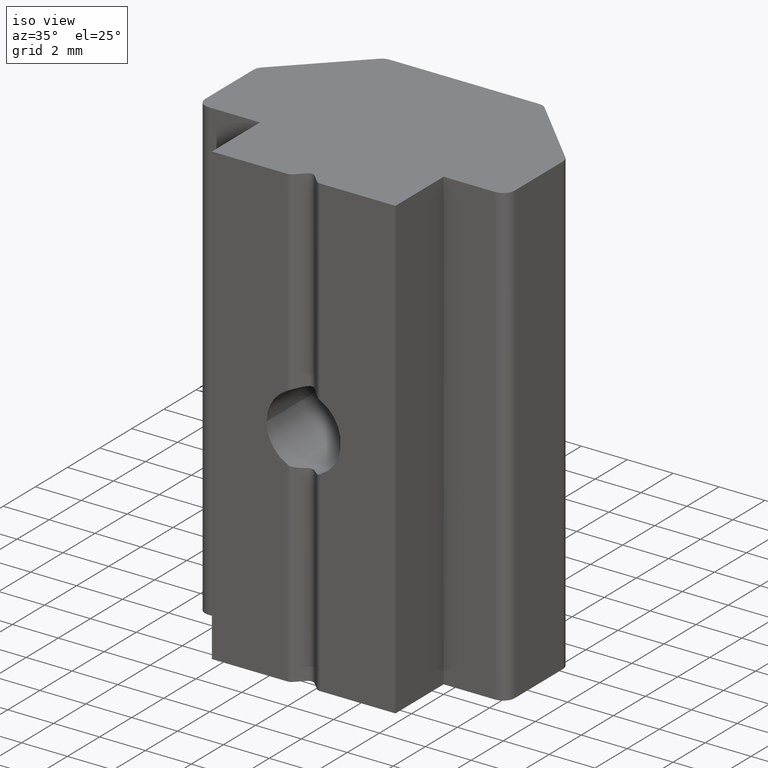
[diagram: clean part render]
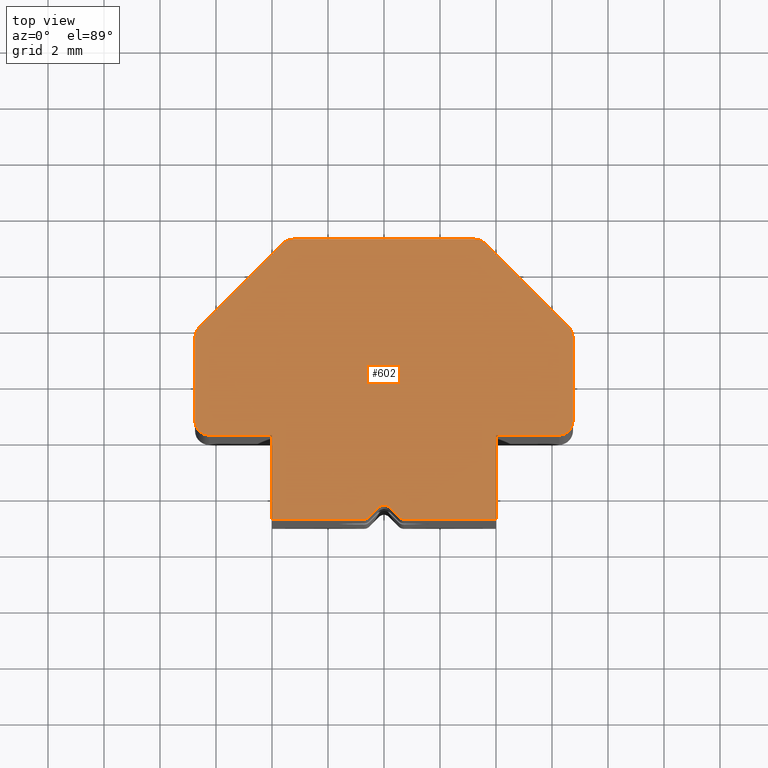
[diagram: tour spotlight — one face highlighted and labeled with its STEP entity id]
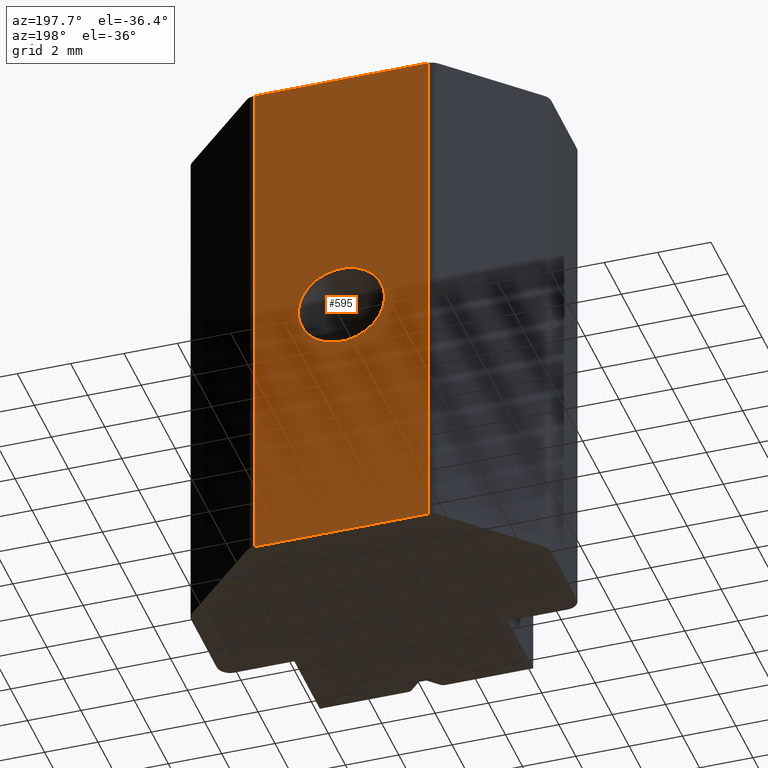
[diagram: tour spotlight — one face highlighted and labeled with its STEP entity id]
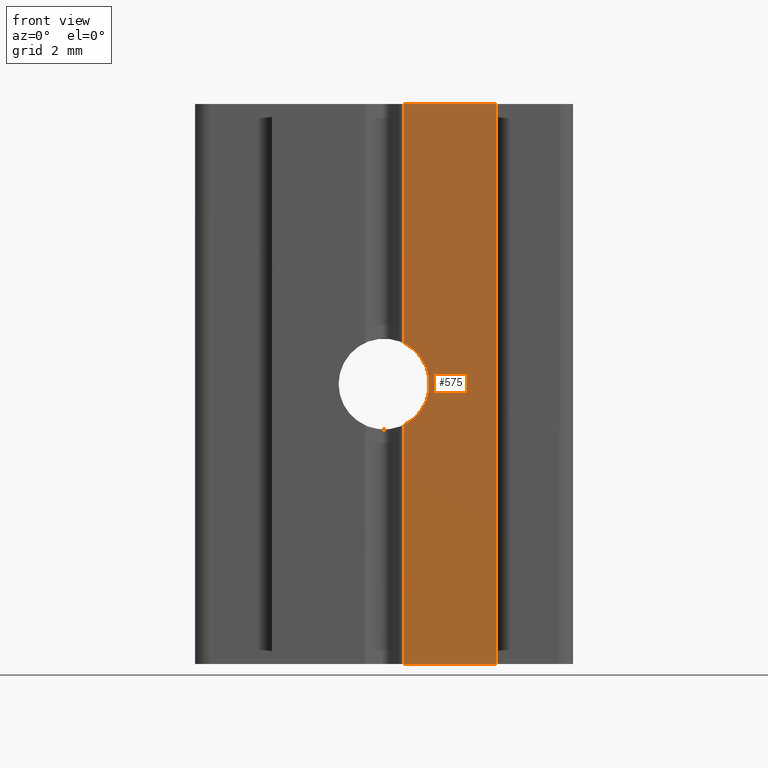
[diagram: tour spotlight — one face highlighted and labeled with its STEP entity id]
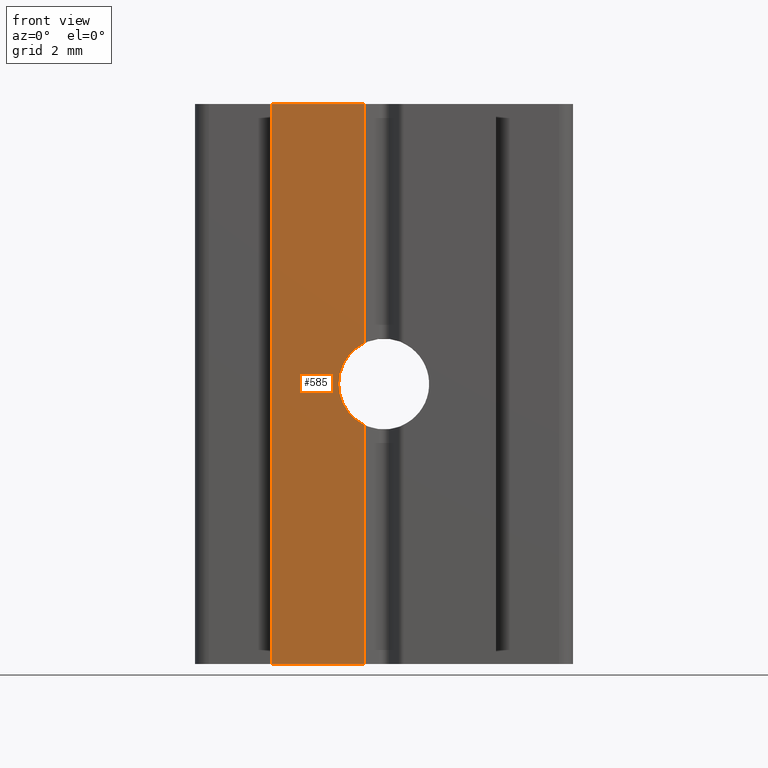
[diagram: tour spotlight — one face highlighted and labeled with its STEP entity id]
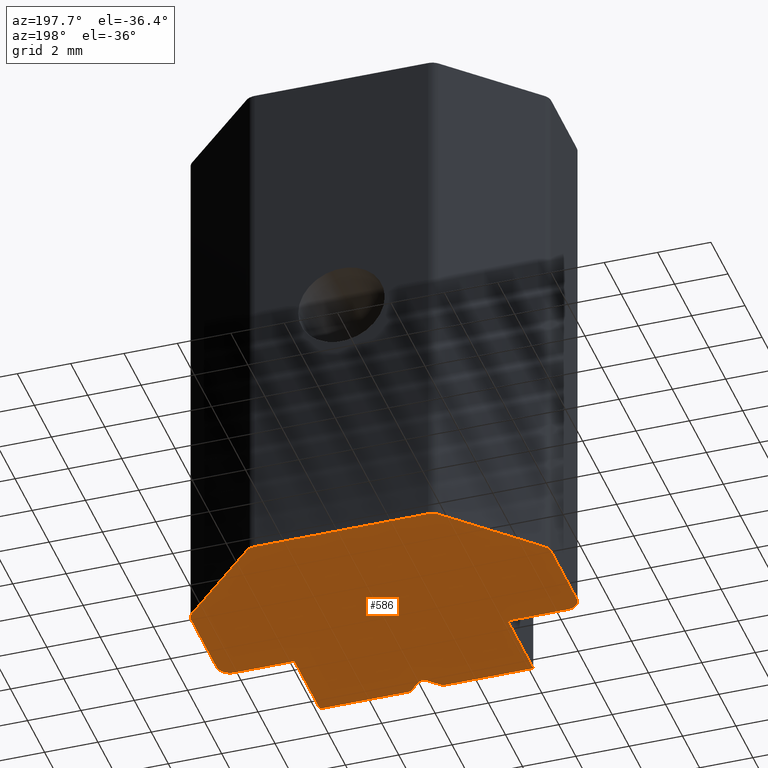
[diagram: tour spotlight — one face highlighted and labeled with its STEP entity id]
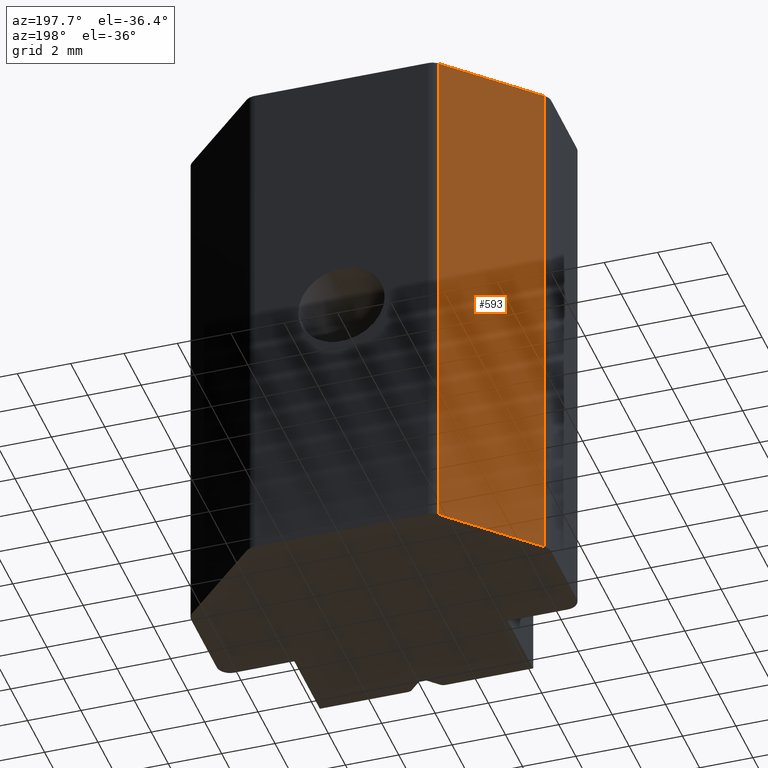
[diagram: tour spotlight — one face highlighted and labeled with its STEP entity id]
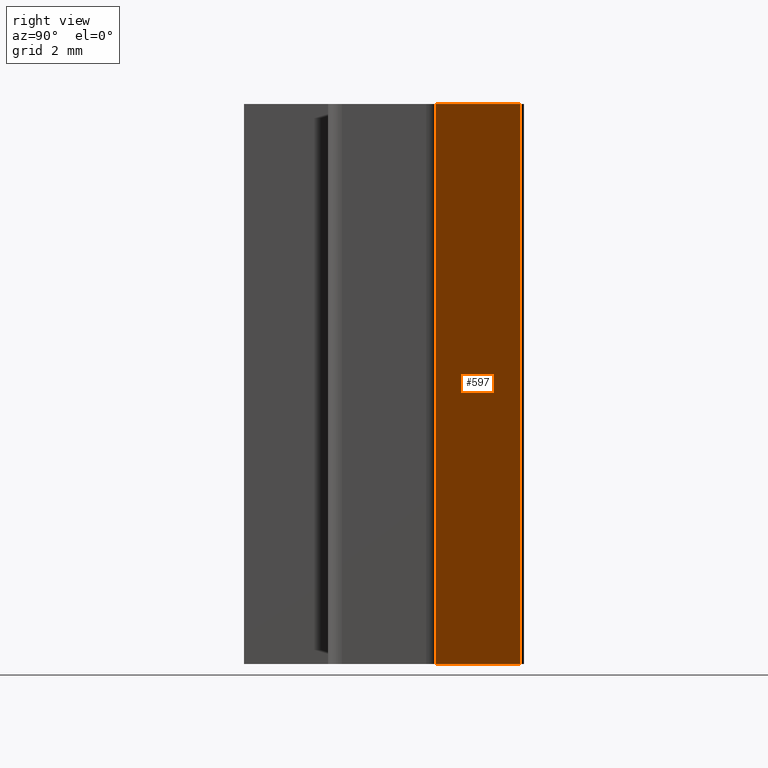
[diagram: tour spotlight — one face highlighted and labeled with its STEP entity id]
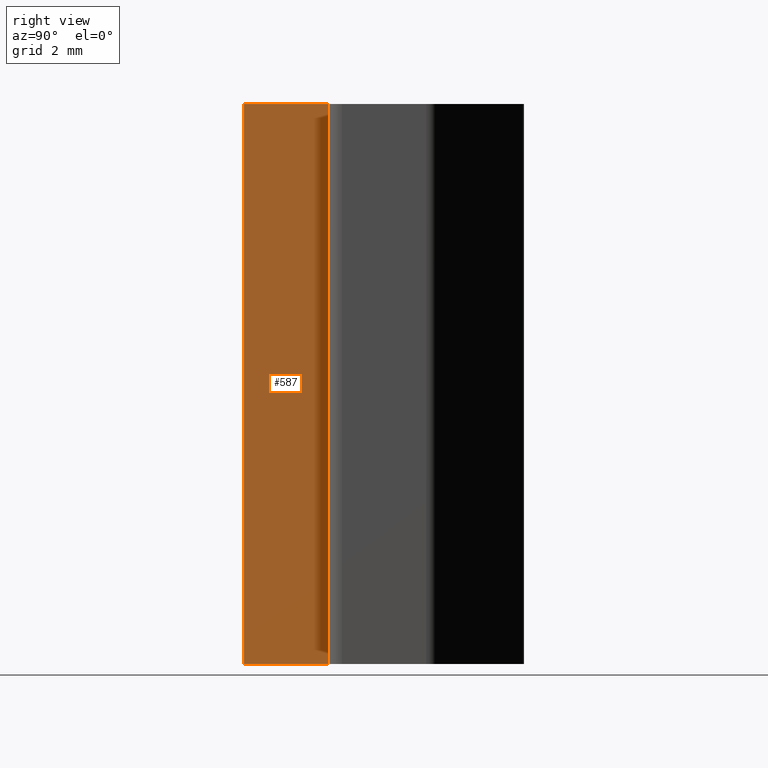
[diagram: tour spotlight — one face highlighted and labeled with its STEP entity id]
A machine part: a face-by-face anatomy tour. The part has 30 B-rep faces; the first image is the clean iso view, then the 8 largest visible faces are spotlighted one at a time (largest first), each with its STEP entity span.

Face 1 — top view, entity #602. In plain terms, the highlighted planar face has unit normal (0, 0, 1).
Definition (entity closure, byte-faithful):
#32=PLANE('',#679);
#62=FACE_OUTER_BOUND('',#93,.T.);
#93=EDGE_LOOP('',(#538,#539,#540,#541,#542,#543,#544,#545,#546,#547,#548,
#549,#550,#551,#552,#553,#554,#555,#556,#557,#558,#559));
#110=LINE('',#936,#165);
#120=LINE('',#963,#175);
#123=LINE('',#971,#178);
#124=LINE('',#974,#179);
#137=LINE('',#1011,#192);
#138=LINE('',#1014,#193);
#140=LINE('',#1018,#195);
#143=LINE('',#1026,#198);
#146=LINE('',#1034,#201);
#149=LINE('',#1042,#204);
#152=LINE('',#1050,#207);
#155=LINE('',#1058,#210);
#158=LINE('',#1065,#213);
#165=VECTOR('',#714,10.);
#175=VECTOR('',#746,10.);
#178=VECTOR('',#755,10.);
#179=VECTOR('',#758,10.);
#192=VECTOR('',#787,10.);
#193=VECTOR('',#790,10.);
#195=VECTOR('',#794,10.);
#198=VECTOR('',#803,10.);
#201=VECTOR('',#812,10.);
#204=VECTOR('',#821,10.);
#207=VECTOR('',#830,10.);
#210=VECTOR('',#839,10.);
#213=VECTOR('',#848,10.);
#221=CIRCLE('',#640,0.25);
#223=CIRCLE('',#644,0.249999999999999);
#224=CIRCLE('',#648,0.25);
#231=CIRCLE('',#662,0.499999999999999);
#232=CIRCLE('',#665,0.500000000000005);
#233=CIRCLE('',#668,0.499999999999994);
#234=CIRCLE('',#671,0.5);
#235=CIRCLE('',#674,0.500000000000001);
#236=CIRCLE('',#677,0.499999999999999);
#256=VERTEX_POINT('',#933);
#257=VERTEX_POINT('',#935);
#260=VERTEX_POINT('',#947);
#261=VERTEX_POINT('',#949);
#263=VERTEX_POINT('',#957);
#264=VERTEX_POINT('',#965);
#265=VERTEX_POINT('',#967);
#266=VERTEX_POINT('',#973);
#282=VERTEX_POINT('',#1009);
#283=VERTEX_POINT('',#1013);
#284=VERTEX_POINT('',#1017);
#285=VERTEX_POINT('',#1021);
#286=VERTEX_POINT('',#1025);
#287=VERTEX_POINT('',#1029);
#288=VERTEX_POINT('',#1033);
#289=VERTEX_POINT('',#1037);
#290=VERTEX_POINT('',#1041);
#291=VERTEX_POINT('',#1045);
#292=VERTEX_POINT('',#1049);
#293=VERTEX_POINT('',#1053);
#294=VERTEX_POINT('',#1057);
#295=VERTEX_POINT('',#1061);
#318=EDGE_CURVE('',#257,#256,#110,.T.);
#325=EDGE_CURVE('',#261,#260,#221,.T.);
#329=EDGE_CURVE('',#263,#257,#223,.T.);
#332=EDGE_CURVE('',#260,#263,#120,.T.);
#334=EDGE_CURVE('',#265,#264,#224,.T.);
#336=EDGE_CURVE('',#264,#261,#123,.T.);
#337=EDGE_CURVE('',#266,#265,#124,.T.);
#356=EDGE_CURVE('',#256,#282,#137,.T.);
#357=EDGE_CURVE('',#283,#266,#138,.T.);
#359=EDGE_CURVE('',#284,#283,#140,.T.);
#361=EDGE_CURVE('',#285,#284,#231,.T.);
#363=EDGE_CURVE('',#286,#285,#143,.T.);
#365=EDGE_CURVE('',#287,#286,#232,.T.);
#367=EDGE_CURVE('',#288,#287,#146,.T.);
#369=EDGE_CURVE('',#289,#288,#233,.T.);
#371=EDGE_CURVE('',#290,#289,#149,.T.);
#373=EDGE_CURVE('',#291,#290,#234,.T.);
#375=EDGE_CURVE('',#292,#291,#152,.T.);
#377=EDGE_CURVE('',#293,#292,#235,.T.);
#379=EDGE_CURVE('',#294,#293,#155,.T.);
#381=EDGE_CURVE('',#295,#294,#236,.T.);
#383=EDGE_CURVE('',#282,#295,#158,.T.);
#538=ORIENTED_EDGE('',*,*,#329,.T.);
#539=ORIENTED_EDGE('',*,*,#318,.T.);
#540=ORIENTED_EDGE('',*,*,#356,.T.);
#541=ORIENTED_EDGE('',*,*,#383,.T.);
#542=ORIENTED_EDGE('',*,*,#381,.T.);
#543=ORIENTED_EDGE('',*,*,#379,.T.);
#544=ORIENTED_EDGE('',*,*,#377,.T.);
#545=ORIENTED_EDGE('',*,*,#375,.T.);
#546=ORIENTED_EDGE('',*,*,#373,.T.);
#547=ORIENTED_EDGE('',*,*,#371,.T.);
#548=ORIENTED_EDGE('',*,*,#369,.T.);
#549=ORIENTED_EDGE('',*,*,#367,.T.);
#550=ORIENTED_EDGE('',*,*,#365,.T.);
#551=ORIENTED_EDGE('',*,*,#363,.T.);
#552=ORIENTED_EDGE('',*,*,#361,.T.);
#553=ORIENTED_EDGE('',*,*,#359,.T.);
#554=ORIENTED_EDGE('',*,*,#357,.T.);
#555=ORIENTED_EDGE('',*,*,#337,.T.);
#556=ORIENTED_EDGE('',*,*,#334,.T.);
#557=ORIENTED_EDGE('',*,*,#336,.T.);
#558=ORIENTED_EDGE('',*,*,#325,.T.);
#559=ORIENTED_EDGE('',*,*,#332,.T.);
#602=ADVANCED_FACE('',(#62),#32,.T.);
#640=AXIS2_PLACEMENT_3D('',#950,#728,#729);
#644=AXIS2_PLACEMENT_3D('',#958,#738,#739);
#648=AXIS2_PLACEMENT_3D('',#968,#750,#751);
#662=AXIS2_PLACEMENT_3D('',#1022,#798,#799);
#665=AXIS2_PLACEMENT_3D('',#1030,#807,#808);
#668=AXIS2_PLACEMENT_3D('',#1038,#816,#817);
#671=AXIS2_PLACEMENT_3D('',#1046,#825,#826);
#674=AXIS2_PLACEMENT_3D('',#1054,#834,#835);
#677=AXIS2_PLACEMENT_3D('',#1062,#843,#844);
#679=AXIS2_PLACEMENT_3D('',#1066,#849,#850);
#714=DIRECTION('',(1.,0.,0.));
#728=DIRECTION('center_axis',(0.,0.,-1.));
#729=DIRECTION('ref_axis',(0.707106781186547,0.707106781186548,0.));
#738=DIRECTION('center_axis',(0.,0.,1.));
#739=DIRECTION('ref_axis',(0.707106781186548,0.707106781186547,0.));
#746=DIRECTION('',(0.707106781186545,-0.707106781186549,0.));
#750=DIRECTION('center_axis',(0.,0.,1.));
#751=DIRECTION('ref_axis',(5.55111512312579E-16,1.,0.));
#755=DIRECTION('',(0.707106781186547,0.707106781186548,0.));
#758=DIRECTION('',(1.,0.,0.));
#787=DIRECTION('',(0.,1.,0.));
#790=DIRECTION('',(0.,-1.,0.));
#794=DIRECTION('',(1.,0.,0.));
#798=DIRECTION('center_axis',(0.,0.,1.));
#799=DIRECTION('ref_axis',(-1.,0.,0.));
#803=DIRECTION('',(0.,-1.,0.));
#807=DIRECTION('center_axis',(0.,0.,1.));
#808=DIRECTION('ref_axis',(-0.707106781186549,0.707106781186546,0.));
#812=DIRECTION('',(-0.707106781186547,-0.707106781186548,0.));
#816=DIRECTION('center_axis',(0.,0.,1.));
#817=DIRECTION('ref_axis',(0.,1.,0.));
#821=DIRECTION('',(-1.,0.,0.));
#825=DIRECTION('center_axis',(0.,0.,1.));
#826=DIRECTION('ref_axis',(0.707106781186548,0.707106781186547,0.));
#830=DIRECTION('',(-0.707106781186547,0.707106781186548,0.));
#834=DIRECTION('center_axis',(0.,0.,1.));
#835=DIRECTION('ref_axis',(1.,-1.11022302462516E-15,0.));
#839=DIRECTION('',(-3.70074341541719E-16,1.,0.));
#843=DIRECTION('center_axis',(0.,0.,1.));
#844=DIRECTION('ref_axis',(0.,-1.,0.));
#848=DIRECTION('',(1.,0.,0.));
#849=DIRECTION('center_axis',(0.,0.,1.));
#850=DIRECTION('ref_axis',(1.,0.,0.));
#933=CARTESIAN_POINT('',(4.,-3.,10.));
#935=CARTESIAN_POINT('',(0.707106781186547,-3.,10.));
#936=CARTESIAN_POINT('',(-4.,-3.,10.));
#947=CARTESIAN_POINT('',(0.176776695296638,-2.57322330470336,10.));
#949=CARTESIAN_POINT('',(-0.176776695296637,-2.57322330470336,10.));
#950=CARTESIAN_POINT('Origin',(-4.71467650385233E-30,-2.75,10.));
#957=CARTESIAN_POINT('',(0.530330085889911,-2.92677669529664,10.));
#958=CARTESIAN_POINT('Origin',(0.707106781186547,-2.75,10.));
#963=CARTESIAN_POINT('',(-0.790466963666722,-1.60597964574,10.));
#965=CARTESIAN_POINT('',(-0.53033008588991,-2.92677669529664,10.));
#967=CARTESIAN_POINT('',(-0.707106781186547,-3.,10.));
#968=CARTESIAN_POINT('Origin',(-0.707106781186547,-2.75,10.));
#971=CARTESIAN_POINT('',(0.96724365896336,-1.42920295044337,10.));
#973=CARTESIAN_POINT('',(-4.,-3.,10.));
#974=CARTESIAN_POINT('',(-4.,-3.,10.));
#1009=CARTESIAN_POINT('',(4.,0.,10.));
#1011=CARTESIAN_POINT('',(4.,-3.,10.));
#1013=CARTESIAN_POINT('',(-4.,0.,10.));
#1014=CARTESIAN_POINT('',(-4.,0.,10.));
#1017=CARTESIAN_POINT('',(-6.25,0.,10.));
#1018=CARTESIAN_POINT('',(-6.25,0.,10.));
#1021=CARTESIAN_POINT('',(-6.75,0.5,10.));
#1022=CARTESIAN_POINT('Origin',(-6.25,0.5,10.));
#1025=CARTESIAN_POINT('',(-6.75,3.5,10.));
#1026=CARTESIAN_POINT('',(-6.75,3.5,10.));
#1029=CARTESIAN_POINT('',(-6.60355339059328,3.85355339059327,10.));
#1030=CARTESIAN_POINT('Origin',(-6.25,3.5,10.));
#1033=CARTESIAN_POINT('',(-3.60355339059328,6.85355339059327,10.));
#1034=CARTESIAN_POINT('',(-3.60355339059328,6.85355339059327,10.));
#1037=CARTESIAN_POINT('',(-3.25,7.,10.));
#1038=CARTESIAN_POINT('Origin',(-3.25,6.5,10.));
#1041=CARTESIAN_POINT('',(3.25,7.,10.));
#1042=CARTESIAN_POINT('',(3.25,7.,10.));
#1045=CARTESIAN_POINT('',(3.60355339059328,6.85355339059327,10.));
#1046=CARTESIAN_POINT('Origin',(3.25,6.5,10.));
#1049=CARTESIAN_POINT('',(6.60355339059327,3.85355339059327,10.));
#1050=CARTESIAN_POINT('',(6.60355339059327,3.85355339059327,10.));
#1053=CARTESIAN_POINT('',(6.75,3.5,10.));
#1054=CARTESIAN_POINT('Origin',(6.25,3.5,10.));
#1057=CARTESIAN_POINT('',(6.75,0.5,10.));
#1058=CARTESIAN_POINT('',(6.75,0.5,10.));
#1061=CARTESIAN_POINT('',(6.25,0.,10.));
#1062=CARTESIAN_POINT('Origin',(6.25,0.5,10.));
#1065=CARTESIAN_POINT('',(4.,0.,10.));
#1066=CARTESIAN_POINT('Origin',(0.,1.82608141703999,10.));

Face 2 — auxiliary view, entity #595. In plain terms, the highlighted planar face has unit normal (0, 1, 0).
Definition (entity closure, byte-faithful):
#15=FACE_BOUND('',#86,.T.);
#28=PLANE('',#669);
#55=FACE_OUTER_BOUND('',#85,.T.);
#85=EDGE_LOOP('',(#508,#509,#510,#511));
#86=EDGE_LOOP('',(#512,#513));
#131=LINE('',#994,#186);
#148=LINE('',#1039,#203);
#149=LINE('',#1042,#204);
#150=LINE('',#1043,#205);
#186=VECTOR('',#773,10.);
#203=VECTOR('',#818,10.);
#204=VECTOR('',#821,10.);
#205=VECTOR('',#822,10.);
#214=CIRCLE('',#624,1.621);
#215=CIRCLE('',#625,1.621);
#237=VERTEX_POINT('',#853);
#238=VERTEX_POINT('',#854);
#274=VERTEX_POINT('',#991);
#275=VERTEX_POINT('',#993);
#289=VERTEX_POINT('',#1037);
#290=VERTEX_POINT('',#1041);
#296=EDGE_CURVE('',#237,#238,#214,.T.);
#297=EDGE_CURVE('',#238,#237,#215,.T.);
#347=EDGE_CURVE('',#274,#275,#131,.T.);
#370=EDGE_CURVE('',#274,#289,#148,.T.);
#371=EDGE_CURVE('',#290,#289,#149,.T.);
#372=EDGE_CURVE('',#275,#290,#150,.T.);
#508=ORIENTED_EDGE('',*,*,#370,.T.);
#509=ORIENTED_EDGE('',*,*,#371,.F.);
#510=ORIENTED_EDGE('',*,*,#372,.F.);
#511=ORIENTED_EDGE('',*,*,#347,.F.);
#512=ORIENTED_EDGE('',*,*,#296,.T.);
#513=ORIENTED_EDGE('',*,*,#297,.T.);
#595=ADVANCED_FACE('',(#55,#15),#28,.T.);
#624=AXIS2_PLACEMENT_3D('',#855,#684,#685);
#625=AXIS2_PLACEMENT_3D('',#856,#686,#687);
#669=AXIS2_PLACEMENT_3D('',#1040,#819,#820);
#684=DIRECTION('center_axis',(0.,-1.,0.));
#685=DIRECTION('ref_axis',(1.,0.,0.));
#686=DIRECTION('center_axis',(0.,-1.,0.));
#687=DIRECTION('ref_axis',(1.,0.,0.));
#773=DIRECTION('',(1.,0.,0.));
#818=DIRECTION('',(0.,0.,1.));
#819=DIRECTION('center_axis',(0.,1.,0.));
#820=DIRECTION('ref_axis',(-1.,0.,0.));
#821=DIRECTION('',(-1.,0.,0.));
#822=DIRECTION('',(0.,0.,1.));
#853=CARTESIAN_POINT('',(1.621,7.,0.));
#854=CARTESIAN_POINT('',(-1.621,7.,1.98515246141786E-16));
#855=CARTESIAN_POINT('Origin',(0.,7.,0.));
#856=CARTESIAN_POINT('Origin',(0.,7.,0.));
#991=CARTESIAN_POINT('',(-3.25,7.,-10.));
#993=CARTESIAN_POINT('',(3.25,7.,-10.));
#994=CARTESIAN_POINT('',(3.25,7.,-10.));
#1037=CARTESIAN_POINT('',(-3.25,7.,10.));
#1039=CARTESIAN_POINT('',(-3.25,7.,0.));
#1040=CARTESIAN_POINT('Origin',(3.25,7.,0.));
#1041=CARTESIAN_POINT('',(3.25,7.,10.));
#1042=CARTESIAN_POINT('',(3.25,7.,10.));
#1043=CARTESIAN_POINT('',(3.25,7.,0.));

Face 3 — front view, entity #575. In plain terms, the highlighted planar face has unit normal (0, -1, 0).
Definition (entity closure, byte-faithful):
#16=PLANE('',#635);
#35=FACE_OUTER_BOUND('',#65,.T.);
#65=EDGE_LOOP('',(#405,#406,#407,#408,#409,#410));
#107=LINE('',#930,#162);
#108=LINE('',#932,#163);
#109=LINE('',#934,#164);
#110=LINE('',#936,#165);
#111=LINE('',#937,#166);
#162=VECTOR('',#711,10.);
#163=VECTOR('',#712,10.);
#164=VECTOR('',#713,10.);
#165=VECTOR('',#714,10.);
#166=VECTOR('',#715,10.);
#217=CIRCLE('',#629,1.621);
#245=VERTEX_POINT('',#883);
#246=VERTEX_POINT('',#890);
#254=VERTEX_POINT('',#929);
#255=VERTEX_POINT('',#931);
#256=VERTEX_POINT('',#933);
#257=VERTEX_POINT('',#935);
#305=EDGE_CURVE('',#246,#245,#217,.T.);
#315=EDGE_CURVE('',#245,#254,#107,.T.);
#316=EDGE_CURVE('',#255,#254,#108,.T.);
#317=EDGE_CURVE('',#255,#256,#109,.T.);
#318=EDGE_CURVE('',#257,#256,#110,.T.);
#319=EDGE_CURVE('',#257,#246,#111,.T.);
#405=ORIENTED_EDGE('',*,*,#305,.T.);
#406=ORIENTED_EDGE('',*,*,#315,.T.);
#407=ORIENTED_EDGE('',*,*,#316,.F.);
#408=ORIENTED_EDGE('',*,*,#317,.T.);
#409=ORIENTED_EDGE('',*,*,#318,.F.);
#410=ORIENTED_EDGE('',*,*,#319,.T.);
#575=ADVANCED_FACE('',(#35),#16,.T.);
#629=AXIS2_PLACEMENT_3D('',#891,#695,#696);
#635=AXIS2_PLACEMENT_3D('',#928,#709,#710);
#695=DIRECTION('center_axis',(0.,1.,0.));
#696=DIRECTION('ref_axis',(1.,0.,0.));
#709=DIRECTION('center_axis',(0.,-1.,0.));
#710=DIRECTION('ref_axis',(1.,0.,0.));
#711=DIRECTION('',(0.,0.,-1.));
#712=DIRECTION('',(-1.,0.,0.));
#713=DIRECTION('',(0.,0.,1.));
#714=DIRECTION('',(1.,0.,0.));
#715=DIRECTION('',(0.,0.,-1.));
#883=CARTESIAN_POINT('',(0.707106781186547,-3.,-1.45864354795817));
#890=CARTESIAN_POINT('',(0.707106781186547,-3.,1.45864354795817));
#891=CARTESIAN_POINT('Origin',(0.,-3.,0.));
#928=CARTESIAN_POINT('Origin',(-4.,-3.,0.));
#929=CARTESIAN_POINT('',(0.707106781186547,-3.,-10.));
#930=CARTESIAN_POINT('',(0.707106781186547,-3.,0.));
#931=CARTESIAN_POINT('',(4.,-3.,-10.));
#932=CARTESIAN_POINT('',(-4.,-3.,-10.));
#933=CARTESIAN_POINT('',(4.,-3.,10.));
#934=CARTESIAN_POINT('',(4.,-3.,0.));
#935=CARTESIAN_POINT('',(0.707106781186547,-3.,10.));
#936=CARTESIAN_POINT('',(-4.,-3.,10.));
#937=CARTESIAN_POINT('',(0.707106781186547,-3.,0.));

Face 4 — front view, entity #585. In plain terms, the highlighted planar face has unit normal (0, -1, 0).
Definition (entity closure, byte-faithful):
#21=PLANE('',#650);
#45=FACE_OUTER_BOUND('',#75,.T.);
#75=EDGE_LOOP('',(#447,#448,#449,#450,#451,#452,#453));
#105=LINE('',#924,#160);
#122=LINE('',#969,#177);
#124=LINE('',#974,#179);
#125=LINE('',#976,#180);
#126=LINE('',#977,#181);
#160=VECTOR('',#705,10.);
#177=VECTOR('',#752,10.);
#179=VECTOR('',#758,10.);
#180=VECTOR('',#759,10.);
#181=VECTOR('',#760,10.);
#216=CIRCLE('',#626,1.621);
#218=CIRCLE('',#632,1.621);
#239=VERTEX_POINT('',#857);
#240=VERTEX_POINT('',#859);
#251=VERTEX_POINT('',#914);
#252=VERTEX_POINT('',#923);
#265=VERTEX_POINT('',#967);
#266=VERTEX_POINT('',#973);
#267=VERTEX_POINT('',#975);
#299=EDGE_CURVE('',#240,#239,#216,.T.);
#311=EDGE_CURVE('',#239,#251,#218,.T.);
#312=EDGE_CURVE('',#240,#252,#105,.T.);
#335=EDGE_CURVE('',#265,#251,#122,.T.);
#337=EDGE_CURVE('',#266,#265,#124,.T.);
#338=EDGE_CURVE('',#267,#266,#125,.T.);
#339=EDGE_CURVE('',#252,#267,#126,.T.);
#447=ORIENTED_EDGE('',*,*,#299,.T.);
#448=ORIENTED_EDGE('',*,*,#311,.T.);
#449=ORIENTED_EDGE('',*,*,#335,.F.);
#450=ORIENTED_EDGE('',*,*,#337,.F.);
#451=ORIENTED_EDGE('',*,*,#338,.F.);
#452=ORIENTED_EDGE('',*,*,#339,.F.);
#453=ORIENTED_EDGE('',*,*,#312,.F.);
#585=ADVANCED_FACE('',(#45),#21,.T.);
#626=AXIS2_PLACEMENT_3D('',#860,#689,#690);
#632=AXIS2_PLACEMENT_3D('',#921,#701,#702);
#650=AXIS2_PLACEMENT_3D('',#972,#756,#757);
#689=DIRECTION('center_axis',(0.,1.,0.));
#690=DIRECTION('ref_axis',(1.,0.,0.));
#701=DIRECTION('center_axis',(0.,1.,0.));
#702=DIRECTION('ref_axis',(1.,0.,0.));
#705=DIRECTION('',(0.,0.,-1.));
#752=DIRECTION('',(0.,0.,-1.));
#756=DIRECTION('center_axis',(0.,-1.,0.));
#757=DIRECTION('ref_axis',(1.,0.,0.));
#758=DIRECTION('',(1.,0.,0.));
#759=DIRECTION('',(0.,0.,1.));
#760=DIRECTION('',(-1.,0.,0.));
#857=CARTESIAN_POINT('',(-1.621,-3.,1.98515246141786E-16));
#859=CARTESIAN_POINT('',(-0.707106781186547,-3.,-1.45864354795817));
#860=CARTESIAN_POINT('Origin',(0.,-3.,0.));
#914=CARTESIAN_POINT('',(-0.707106781186547,-3.,1.45864354795817));
#921=CARTESIAN_POINT('Origin',(0.,-3.,0.));
#923=CARTESIAN_POINT('',(-0.707106781186547,-3.,-10.));
#924=CARTESIAN_POINT('',(-0.707106781186547,-3.,0.));
#967=CARTESIAN_POINT('',(-0.707106781186547,-3.,10.));
#969=CARTESIAN_POINT('',(-0.707106781186547,-3.,0.));
#972=CARTESIAN_POINT('Origin',(-4.,-3.,0.));
#973=CARTESIAN_POINT('',(-4.,-3.,10.));
#974=CARTESIAN_POINT('',(-4.,-3.,10.));
#975=CARTESIAN_POINT('',(-4.,-3.,-10.));
#976=CARTESIAN_POINT('',(-4.,-3.,0.));
#977=CARTESIAN_POINT('',(-4.,-3.,-10.));

Face 5 — auxiliary view, entity #586. In plain terms, the highlighted planar face has unit normal (0, 0, 1).
Definition (entity closure, byte-faithful):
#22=PLANE('',#651);
#46=FACE_OUTER_BOUND('',#76,.T.);
#76=EDGE_LOOP('',(#454,#455,#456,#457,#458,#459,#460,#461,#462,#463,#464,
#465,#466,#467,#468,#469,#470,#471,#472,#473,#474,#475));
#108=LINE('',#932,#163);
#112=LINE('',#940,#167);
#119=LINE('',#961,#174);
#126=LINE('',#977,#181);
#127=LINE('',#980,#182);
#128=LINE('',#982,#183);
#129=LINE('',#986,#184);
#130=LINE('',#990,#185);
#131=LINE('',#994,#186);
#132=LINE('',#998,#187);
#133=LINE('',#1002,#188);
#134=LINE('',#1006,#189);
#135=LINE('',#1007,#190);
#163=VECTOR('',#712,10.);
#167=VECTOR('',#718,10.);
#174=VECTOR('',#743,10.);
#181=VECTOR('',#760,10.);
#182=VECTOR('',#763,10.);
#183=VECTOR('',#764,10.);
#184=VECTOR('',#767,10.);
#185=VECTOR('',#770,10.);
#186=VECTOR('',#773,10.);
#187=VECTOR('',#776,10.);
#188=VECTOR('',#779,10.);
#189=VECTOR('',#782,10.);
#190=VECTOR('',#783,10.);
#219=CIRCLE('',#634,0.25);
#220=CIRCLE('',#638,0.25);
#222=CIRCLE('',#642,0.249999999999999);
#225=CIRCLE('',#652,0.499999999999999);
#226=CIRCLE('',#653,0.500000000000005);
#227=CIRCLE('',#654,0.499999999999994);
#228=CIRCLE('',#655,0.5);
#229=CIRCLE('',#656,0.500000000000001);
#230=CIRCLE('',#657,0.499999999999999);
#252=VERTEX_POINT('',#923);
#253=VERTEX_POINT('',#925);
#254=VERTEX_POINT('',#929);
#255=VERTEX_POINT('',#931);
#258=VERTEX_POINT('',#939);
#259=VERTEX_POINT('',#943);
#262=VERTEX_POINT('',#953);
#267=VERTEX_POINT('',#975);
#268=VERTEX_POINT('',#979);
#269=VERTEX_POINT('',#981);
#270=VERTEX_POINT('',#983);
#271=VERTEX_POINT('',#985);
#272=VERTEX_POINT('',#987);
#273=VERTEX_POINT('',#989);
#274=VERTEX_POINT('',#991);
#275=VERTEX_POINT('',#993);
#276=VERTEX_POINT('',#995);
#277=VERTEX_POINT('',#997);
#278=VERTEX_POINT('',#999);
#279=VERTEX_POINT('',#1001);
#280=VERTEX_POINT('',#1003);
#281=VERTEX_POINT('',#1005);
#313=EDGE_CURVE('',#253,#252,#219,.T.);
#316=EDGE_CURVE('',#255,#254,#108,.T.);
#320=EDGE_CURVE('',#258,#253,#112,.T.);
#322=EDGE_CURVE('',#259,#258,#220,.T.);
#328=EDGE_CURVE('',#254,#262,#222,.T.);
#331=EDGE_CURVE('',#262,#259,#119,.T.);
#339=EDGE_CURVE('',#252,#267,#126,.T.);
#340=EDGE_CURVE('',#267,#268,#127,.T.);
#341=EDGE_CURVE('',#268,#269,#128,.T.);
#342=EDGE_CURVE('',#269,#270,#225,.T.);
#343=EDGE_CURVE('',#270,#271,#129,.T.);
#344=EDGE_CURVE('',#271,#272,#226,.T.);
#345=EDGE_CURVE('',#272,#273,#130,.T.);
#346=EDGE_CURVE('',#273,#274,#227,.T.);
#347=EDGE_CURVE('',#274,#275,#131,.T.);
#348=EDGE_CURVE('',#275,#276,#228,.T.);
#349=EDGE_CURVE('',#276,#277,#132,.T.);
#350=EDGE_CURVE('',#277,#278,#229,.T.);
#351=EDGE_CURVE('',#278,#279,#133,.T.);
#352=EDGE_CURVE('',#279,#280,#230,.T.);
#353=EDGE_CURVE('',#280,#281,#134,.T.);
#354=EDGE_CURVE('',#281,#255,#135,.T.);
#454=ORIENTED_EDGE('',*,*,#328,.T.);
#455=ORIENTED_EDGE('',*,*,#331,.T.);
#456=ORIENTED_EDGE('',*,*,#322,.T.);
#457=ORIENTED_EDGE('',*,*,#320,.T.);
#458=ORIENTED_EDGE('',*,*,#313,.T.);
#459=ORIENTED_EDGE('',*,*,#339,.T.);
#460=ORIENTED_EDGE('',*,*,#340,.T.);
#461=ORIENTED_EDGE('',*,*,#341,.T.);
#462=ORIENTED_EDGE('',*,*,#342,.T.);
#463=ORIENTED_EDGE('',*,*,#343,.T.);
#464=ORIENTED_EDGE('',*,*,#344,.T.);
#465=ORIENTED_EDGE('',*,*,#345,.T.);
#466=ORIENTED_EDGE('',*,*,#346,.T.);
#467=ORIENTED_EDGE('',*,*,#347,.T.);
#468=ORIENTED_EDGE('',*,*,#348,.T.);
#469=ORIENTED_EDGE('',*,*,#349,.T.);
#470=ORIENTED_EDGE('',*,*,#350,.T.);
#471=ORIENTED_EDGE('',*,*,#351,.T.);
#472=ORIENTED_EDGE('',*,*,#352,.T.);
#473=ORIENTED_EDGE('',*,*,#353,.T.);
#474=ORIENTED_EDGE('',*,*,#354,.T.);
#475=ORIENTED_EDGE('',*,*,#316,.T.);
#586=ADVANCED_FACE('',(#46),#22,.F.);
#634=AXIS2_PLACEMENT_3D('',#926,#706,#707);
#638=AXIS2_PLACEMENT_3D('',#944,#722,#723);
#642=AXIS2_PLACEMENT_3D('',#955,#734,#735);
#651=AXIS2_PLACEMENT_3D('',#978,#761,#762);
#652=AXIS2_PLACEMENT_3D('',#984,#765,#766);
#653=AXIS2_PLACEMENT_3D('',#988,#768,#769);
#654=AXIS2_PLACEMENT_3D('',#992,#771,#772);
#655=AXIS2_PLACEMENT_3D('',#996,#774,#775);
#656=AXIS2_PLACEMENT_3D('',#1000,#777,#778);
#657=AXIS2_PLACEMENT_3D('',#1004,#780,#781);
#706=DIRECTION('center_axis',(0.,0.,-1.));
#707=DIRECTION('ref_axis',(5.55111512312579E-16,1.,0.));
#712=DIRECTION('',(-1.,0.,0.));
#718=DIRECTION('',(-0.707106781186547,-0.707106781186548,0.));
#722=DIRECTION('center_axis',(0.,0.,1.));
#723=DIRECTION('ref_axis',(0.707106781186547,0.707106781186548,0.));
#734=DIRECTION('center_axis',(0.,0.,-1.));
#735=DIRECTION('ref_axis',(0.707106781186548,0.707106781186547,0.));
#743=DIRECTION('',(-0.707106781186545,0.707106781186549,0.));
#760=DIRECTION('',(-1.,0.,0.));
#761=DIRECTION('center_axis',(0.,0.,1.));
#762=DIRECTION('ref_axis',(1.,0.,0.));
#763=DIRECTION('',(0.,1.,0.));
#764=DIRECTION('',(-1.,0.,0.));
#765=DIRECTION('center_axis',(0.,0.,-1.));
#766=DIRECTION('ref_axis',(-1.,0.,0.));
#767=DIRECTION('',(0.,1.,0.));
#768=DIRECTION('center_axis',(0.,0.,-1.));
#769=DIRECTION('ref_axis',(-0.707106781186549,0.707106781186546,0.));
#770=DIRECTION('',(0.707106781186547,0.707106781186548,0.));
#771=DIRECTION('center_axis',(0.,0.,-1.));
#772=DIRECTION('ref_axis',(0.,1.,0.));
#773=DIRECTION('',(1.,0.,0.));
#774=DIRECTION('center_axis',(0.,0.,-1.));
#775=DIRECTION('ref_axis',(0.707106781186548,0.707106781186547,0.));
#776=DIRECTION('',(0.707106781186547,-0.707106781186548,0.));
#777=DIRECTION('center_axis',(0.,0.,-1.));
#778=DIRECTION('ref_axis',(1.,-1.11022302462516E-15,0.));
#779=DIRECTION('',(3.70074341541719E-16,-1.,0.));
#780=DIRECTION('center_axis',(0.,0.,-1.));
#781=DIRECTION('ref_axis',(0.,-1.,0.));
#782=DIRECTION('',(-1.,0.,0.));
#783=DIRECTION('',(0.,-1.,0.));
#923=CARTESIAN_POINT('',(-0.707106781186547,-3.,-10.));
#925=CARTESIAN_POINT('',(-0.53033008588991,-2.92677669529664,-10.));
#926=CARTESIAN_POINT('Origin',(-0.707106781186547,-2.75,-10.));
#929=CARTESIAN_POINT('',(0.707106781186547,-3.,-10.));
#931=CARTESIAN_POINT('',(4.,-3.,-10.));
#932=CARTESIAN_POINT('',(-4.,-3.,-10.));
#939=CARTESIAN_POINT('',(-0.176776695296637,-2.57322330470336,-10.));
#940=CARTESIAN_POINT('',(0.96724365896336,-1.42920295044337,-10.));
#943=CARTESIAN_POINT('',(0.176776695296638,-2.57322330470336,-10.));
#944=CARTESIAN_POINT('Origin',(-4.71467650385233E-30,-2.75,-10.));
#953=CARTESIAN_POINT('',(0.530330085889911,-2.92677669529664,-10.));
#955=CARTESIAN_POINT('Origin',(0.707106781186547,-2.75,-10.));
#961=CARTESIAN_POINT('',(-0.790466963666722,-1.60597964574,-10.));
#975=CARTESIAN_POINT('',(-4.,-3.,-10.));
#977=CARTESIAN_POINT('',(-4.,-3.,-10.));
#978=CARTESIAN_POINT('Origin',(0.,1.82608141703999,-10.));
#979=CARTESIAN_POINT('',(-4.,0.,-10.));
#980=CARTESIAN_POINT('',(-4.,0.,-10.));
#981=CARTESIAN_POINT('',(-6.25,0.,-10.));
#982=CARTESIAN_POINT('',(-6.25,0.,-10.));
#983=CARTESIAN_POINT('',(-6.75,0.5,-10.));
#984=CARTESIAN_POINT('Origin',(-6.25,0.5,-10.));
#985=CARTESIAN_POINT('',(-6.75,3.5,-10.));
#986=CARTESIAN_POINT('',(-6.75,3.5,-10.));
#987=CARTESIAN_POINT('',(-6.60355339059328,3.85355339059327,-10.));
#988=CARTESIAN_POINT('Origin',(-6.25,3.5,-10.));
#989=CARTESIAN_POINT('',(-3.60355339059328,6.85355339059327,-10.));
#990=CARTESIAN_POINT('',(-3.60355339059328,6.85355339059327,-10.));
#991=CARTESIAN_POINT('',(-3.25,7.,-10.));
#992=CARTESIAN_POINT('Origin',(-3.25,6.5,-10.));
#993=CARTESIAN_POINT('',(3.25,7.,-10.));
#994=CARTESIAN_POINT('',(3.25,7.,-10.));
#995=CARTESIAN_POINT('',(3.60355339059328,6.85355339059327,-10.));
#996=CARTESIAN_POINT('Origin',(3.25,6.5,-10.));
#997=CARTESIAN_POINT('',(6.60355339059327,3.85355339059327,-10.));
#998=CARTESIAN_POINT('',(6.60355339059327,3.85355339059327,-10.));
#999=CARTESIAN_POINT('',(6.75,3.5,-10.));
#1000=CARTESIAN_POINT('Origin',(6.25,3.5,-10.));
#1001=CARTESIAN_POINT('',(6.75,0.5,-10.));
#1002=CARTESIAN_POINT('',(6.75,0.5,-10.));
#1003=CARTESIAN_POINT('',(6.25,0.,-10.));
#1004=CARTESIAN_POINT('Origin',(6.25,0.5,-10.));
#1005=CARTESIAN_POINT('',(4.,0.,-10.));
#1006=CARTESIAN_POINT('',(4.,0.,-10.));
#1007=CARTESIAN_POINT('',(4.,-3.,-10.));

Face 6 — auxiliary view, entity #593. In plain terms, the highlighted planar face has unit normal (-0.7071, 0.7071, 0).
Definition (entity closure, byte-faithful):
#27=PLANE('',#666);
#53=FACE_OUTER_BOUND('',#83,.T.);
#83=EDGE_LOOP('',(#500,#501,#502,#503));
#130=LINE('',#990,#185);
#145=LINE('',#1031,#200);
#146=LINE('',#1034,#201);
#147=LINE('',#1035,#202);
#185=VECTOR('',#770,10.);
#200=VECTOR('',#809,10.);
#201=VECTOR('',#812,10.);
#202=VECTOR('',#813,10.);
#272=VERTEX_POINT('',#987);
#273=VERTEX_POINT('',#989);
#287=VERTEX_POINT('',#1029);
#288=VERTEX_POINT('',#1033);
#345=EDGE_CURVE('',#272,#273,#130,.T.);
#366=EDGE_CURVE('',#272,#287,#145,.T.);
#367=EDGE_CURVE('',#288,#287,#146,.T.);
#368=EDGE_CURVE('',#273,#288,#147,.T.);
#500=ORIENTED_EDGE('',*,*,#366,.T.);
#501=ORIENTED_EDGE('',*,*,#367,.F.);
#502=ORIENTED_EDGE('',*,*,#368,.F.);
#503=ORIENTED_EDGE('',*,*,#345,.F.);
#593=ADVANCED_FACE('',(#53),#27,.T.);
#666=AXIS2_PLACEMENT_3D('',#1032,#810,#811);
#770=DIRECTION('',(0.707106781186547,0.707106781186548,0.));
#809=DIRECTION('',(0.,0.,1.));
#810=DIRECTION('center_axis',(-0.707106781186548,0.707106781186547,0.));
#811=DIRECTION('ref_axis',(-0.707106781186547,-0.707106781186548,0.));
#812=DIRECTION('',(-0.707106781186547,-0.707106781186548,0.));
#813=DIRECTION('',(0.,0.,1.));
#987=CARTESIAN_POINT('',(-6.60355339059328,3.85355339059327,-10.));
#989=CARTESIAN_POINT('',(-3.60355339059328,6.85355339059327,-10.));
#990=CARTESIAN_POINT('',(-3.60355339059328,6.85355339059327,-10.));
#1029=CARTESIAN_POINT('',(-6.60355339059328,3.85355339059327,10.));
#1031=CARTESIAN_POINT('',(-6.60355339059327,3.85355339059327,0.));
#1032=CARTESIAN_POINT('Origin',(-3.60355339059328,6.85355339059327,0.));
#1033=CARTESIAN_POINT('',(-3.60355339059328,6.85355339059327,10.));
#1034=CARTESIAN_POINT('',(-3.60355339059328,6.85355339059327,10.));
#1035=CARTESIAN_POINT('',(-3.60355339059328,6.85355339059327,0.));

Face 7 — right view, entity #597. In plain terms, the highlighted planar face has unit normal (0.7071, 0.7071, 0).
Definition (entity closure, byte-faithful):
#29=PLANE('',#672);
#57=FACE_OUTER_BOUND('',#88,.T.);
#88=EDGE_LOOP('',(#518,#519,#520,#521));
#132=LINE('',#998,#187);
#151=LINE('',#1047,#206);
#152=LINE('',#1050,#207);
#153=LINE('',#1051,#208);
#187=VECTOR('',#776,10.);
#206=VECTOR('',#827,10.);
#207=VECTOR('',#830,10.);
#208=VECTOR('',#831,10.);
#276=VERTEX_POINT('',#995);
#277=VERTEX_POINT('',#997);
#291=VERTEX_POINT('',#1045);
#292=VERTEX_POINT('',#1049);
#349=EDGE_CURVE('',#276,#277,#132,.T.);
#374=EDGE_CURVE('',#276,#291,#151,.T.);
#375=EDGE_CURVE('',#292,#291,#152,.T.);
#376=EDGE_CURVE('',#277,#292,#153,.T.);
#518=ORIENTED_EDGE('',*,*,#374,.T.);
#519=ORIENTED_EDGE('',*,*,#375,.F.);
#520=ORIENTED_EDGE('',*,*,#376,.F.);
#521=ORIENTED_EDGE('',*,*,#349,.F.);
#597=ADVANCED_FACE('',(#57),#29,.T.);
#672=AXIS2_PLACEMENT_3D('',#1048,#828,#829);
#776=DIRECTION('',(0.707106781186547,-0.707106781186548,0.));
#827=DIRECTION('',(0.,0.,1.));
#828=DIRECTION('center_axis',(0.707106781186548,0.707106781186547,0.));
#829=DIRECTION('ref_axis',(-0.707106781186547,0.707106781186548,0.));
#830=DIRECTION('',(-0.707106781186547,0.707106781186548,0.));
#831=DIRECTION('',(0.,0.,1.));
#995=CARTESIAN_POINT('',(3.60355339059328,6.85355339059327,-10.));
#997=CARTESIAN_POINT('',(6.60355339059327,3.85355339059327,-10.));
#998=CARTESIAN_POINT('',(6.60355339059327,3.85355339059327,-10.));
#1045=CARTESIAN_POINT('',(3.60355339059328,6.85355339059327,10.));
#1047=CARTESIAN_POINT('',(3.60355339059328,6.85355339059327,0.));
#1048=CARTESIAN_POINT('Origin',(6.60355339059327,3.85355339059327,0.));
#1049=CARTESIAN_POINT('',(6.60355339059327,3.85355339059327,10.));
#1050=CARTESIAN_POINT('',(6.60355339059327,3.85355339059327,10.));
#1051=CARTESIAN_POINT('',(6.60355339059327,3.85355339059327,0.));

Face 8 — right view, entity #587. In plain terms, the highlighted planar face has unit normal (1, 0, 0).
Definition (entity closure, byte-faithful):
#23=PLANE('',#658);
#47=FACE_OUTER_BOUND('',#77,.T.);
#77=EDGE_LOOP('',(#476,#477,#478,#479));
#109=LINE('',#934,#164);
#135=LINE('',#1007,#190);
#136=LINE('',#1010,#191);
#137=LINE('',#1011,#192);
#164=VECTOR('',#713,10.);
#190=VECTOR('',#783,10.);
#191=VECTOR('',#786,10.);
#192=VECTOR('',#787,10.);
#255=VERTEX_POINT('',#931);
#256=VERTEX_POINT('',#933);
#281=VERTEX_POINT('',#1005);
#282=VERTEX_POINT('',#1009);
#317=EDGE_CURVE('',#255,#256,#109,.T.);
#354=EDGE_CURVE('',#281,#255,#135,.T.);
#355=EDGE_CURVE('',#282,#281,#136,.T.);
#356=EDGE_CURVE('',#256,#282,#137,.T.);
#476=ORIENTED_EDGE('',*,*,#355,.F.);
#477=ORIENTED_EDGE('',*,*,#356,.F.);
#478=ORIENTED_EDGE('',*,*,#317,.F.);
#479=ORIENTED_EDGE('',*,*,#354,.F.);
#587=ADVANCED_FACE('',(#47),#23,.T.);
#658=AXIS2_PLACEMENT_3D('',#1008,#784,#785);
#713=DIRECTION('',(0.,0.,1.));
#783=DIRECTION('',(0.,-1.,0.));
#784=DIRECTION('center_axis',(1.,0.,0.));
#785=DIRECTION('ref_axis',(0.,1.,0.));
#786=DIRECTION('',(0.,0.,-1.));
#787=DIRECTION('',(0.,1.,0.));
#931=CARTESIAN_POINT('',(4.,-3.,-10.));
#933=CARTESIAN_POINT('',(4.,-3.,10.));
#934=CARTESIAN_POINT('',(4.,-3.,0.));
#1005=CARTESIAN_POINT('',(4.,0.,-10.));
#1007=CARTESIAN_POINT('',(4.,-3.,-10.));
#1008=CARTESIAN_POINT('Origin',(4.,-3.,0.));
#1009=CARTESIAN_POINT('',(4.,0.,10.));
#1010=CARTESIAN_POINT('',(4.,0.,0.));
#1011=CARTESIAN_POINT('',(4.,-3.,10.));